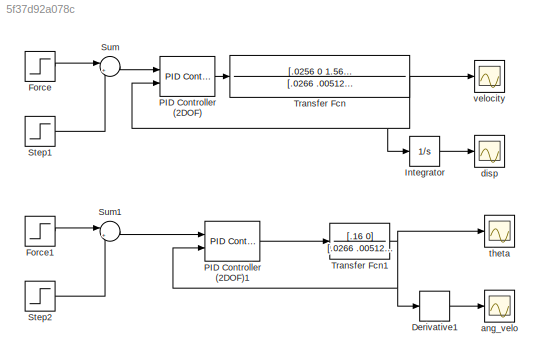
MODEL slx_5f37d92a078c
KIND model
CONFIG AbsTol = auto
CONFIG FixedStep = auto
CONFIG MaxStep = auto
CONFIG MinStep = auto
CONFIG RelTol = 1e-3
CONFIG SampleTimeConstraint = Unconstrained
CONFIG Solver = ode45
CONFIG SolverMode = Auto
CONFIG SolverName = ode45
CONFIG StartTime = 0.0
CONFIG StopTime = 70
BLOCK [Derivative] Derivative1
BLOCK [Step] Force
  After = .1
  SampleTime = 0
BLOCK [Step] Force1
  SampleTime = 0
BLOCK [Integrator] Integrator
  Ports = [1, 1]
BLOCK [Reference] PID Controller (2DOF)  REF=simulink/Continuous/PID Controller (2DOF)
  AntiWindupMode = none
  Controller = PID
  ControllerParametersSource = internal
  D = -0.0447239628206366
  DGainOutDataTypeStr = Inherit: Inherit via internal rule
  DOutDataTypeStr = Inherit: Inherit via internal rule
  DOutMax = []
  DOutMin = []
  DParamDataTypeStr = Inherit: Inherit via internal rule
  DParamMax = []
  DParamMin = []
  DProdOutDataTypeStr = Inherit: Inherit via internal rule
  DifferentiatorICPrevScaledInput = 0
  DifferentiatorOutDataTypeStr = Inherit: Inherit via internal rule
  DifferentiatorOutMax = []
  DifferentiatorOutMin = []
  ExternalReset = none
  FilterContinuousStateAttributes = ''
  FilterMethod = Forward Euler
  FilterOutDataTypeStr = Inherit: Inherit via internal rule
  FilterOutMax = []
  FilterOutMin = []
  FilterRTWStateStorageClass = Auto
  FilterStateMustResolveToSignalObject = off
  Form = Parallel
  I = 0.0260864141441956
  IGainOutDataTypeStr = Inherit: Inherit via internal rule
  IOutDataTypeStr = Inherit: Inherit via internal rule
  IOutMax = []
  IOutMin = []
  IParamDataTypeStr = Inherit: Inherit via internal rule
  IParamMax = []
  IParamMin = []
  IProdOutDataTypeStr = Inherit: Inherit via internal rule
  IgnoreLimit = off
  InitialConditionForFilter = 0
  InitialConditionForIntegrator = 0
  InitialConditionSource = internal
  IntegratorContinuousStateAttributes = ''
  IntegratorMethod = Forward Euler
  IntegratorOutDataTypeStr = Inherit: Inherit via internal rule
  IntegratorOutMax = []
  IntegratorOutMin = []
  IntegratorRTWStateStorageClass = Auto
  IntegratorStateMustResolveToSignalObject = off
  Kb = 1
  KbOutDataTypeStr = Inherit: Inherit via internal rule
  KbOutMax = []
  KbOutMin = []
  KbParamDataTypeStr = Inherit: Inherit via internal rule
  KbParamMax = []
  KbParamMin = []
  Kt = 1
  KtOutDataTypeStr = Inherit: Inherit via internal rule
  KtOutMax = []
  KtOutMin = []
  KtParamDataTypeStr = Inherit: Inherit via internal rule
  KtParamMax = []
  KtParamMin = []
  LimitOutput = off
  LinearizeAsGain = on
  LockScale = off
  LowerSaturationLimit = -inf
  N = 0.297618918978535
  NGainOutDataTypeStr = Inherit: Inherit via internal rule
  NOutDataTypeStr = Inherit: Inherit via internal rule
  NOutMax = []
  NOutMin = []
  NParamDataTypeStr = Inherit: Inherit via internal rule
  NParamMax = []
  NParamMin = []
  NProdOutDataTypeStr = Inherit: Inherit via internal rule
  P = 0.132321758434296
  PGainOutDataTypeStr = Inherit: Inherit via internal rule
  POutDataTypeStr = Inherit: Inherit via internal rule
  POutMax = []
  POutMin = []
  PParamDataTypeStr = Inherit: Inherit via internal rule
  PParamMax = []
  PParamMin = []
  PProdOutDataTypeStr = Inherit: Inherit via internal rule
  Ports = [2, 1]
  RndMeth = Floor
  SampleTime = -1
  SaturateOnIntegerOverflow = off
  SaturationOutDataTypeStr = Inherit: Same as input
  SaturationOutMax = []
  SaturationOutMin = []
  SourceBlock = simulink/Continuous/PID Controller (2DOF)
  SourceType = PID 2dof
  Sum1AccumDataTypeStr = Inherit: Inherit via internal rule
  Sum1OutDataTypeStr = Inherit: Inherit via internal rule
  Sum1OutMax = []
  Sum1OutMin = []
  Sum2AccumDataTypeStr = Inherit: Inherit via internal rule
  Sum2OutDataTypeStr = Inherit: Inherit via internal rule
  Sum2OutMax = []
  Sum2OutMin = []
  Sum3AccumDataTypeStr = Inherit: Inherit via internal rule
  Sum3OutDataTypeStr = Inherit: Inherit via internal rule
  Sum3OutMax = []
  Sum3OutMin = []
  SumAccumDataTypeStr = Inherit: Inherit via internal rule
  SumDAccumDataTypeStr = Inherit: Inherit via internal rule
  SumDOutDataTypeStr = Inherit: Inherit via internal rule
  SumDOutMax = []
  SumDOutMin = []
  SumI1AccumDataTypeStr = Inherit: Inherit via internal rule
  SumI1OutDataTypeStr = Inherit: Inherit via internal rule
  SumI1OutMax = []
  SumI1OutMin = []
  SumI2AccumDataTypeStr = Inherit: Inherit via internal rule
  SumI2OutDataTypeStr = Inherit: Inherit via internal rule
  SumI2OutMax = []
  SumI2OutMin = []
  SumI3AccumDataTypeStr = Inherit: Inherit via internal rule
  SumI3OutDataTypeStr = Inherit: Inherit via internal rule
  SumI3OutMax = []
  SumI3OutMin = []
  SumOutDataTypeStr = Inherit: Inherit via internal rule
  SumOutMax = []
  SumOutMin = []
  TimeDomain = Continuous-time
  TrackingMode = off
  UpperSaturationLimit = inf
  UseFilter = on
  ZeroCross = on
  b = 0
  bGainOutDataTypeStr = Inherit: Inherit via internal rule
  bOutDataTypeStr = Inherit: Inherit via internal rule
  bOutMax = []
  bOutMin = []
  bParamDataTypeStr = Inherit: Inherit via internal rule
  bParamMax = []
  bParamMin = []
  bProdOutDataTypeStr = Inherit: Inherit via internal rule
  c = 0
  cGainOutDataTypeStr = Inherit: Inherit via internal rule
  cOutDataTypeStr = Inherit: Inherit via internal rule
  cOutMax = []
  cOutMin = []
  cParamDataTypeStr = Inherit: Inherit via internal rule
  cParamMax = []
  cParamMin = []
  cProdOutDataTypeStr = Inherit: Inherit via internal rule
BLOCK [Reference] PID Controller (2DOF)1  REF=simulink/Continuous/PID Controller (2DOF)
  AntiWindupMode = none
  Controller = PID
  ControllerParametersSource = internal
  D = 2.12079190467696
  DGainOutDataTypeStr = Inherit: Inherit via internal rule
  DOutDataTypeStr = Inherit: Inherit via internal rule
  DOutMax = []
  DOutMin = []
  DParamDataTypeStr = Inherit: Inherit via internal rule
  DParamMax = []
  DParamMin = []
  DProdOutDataTypeStr = Inherit: Inherit via internal rule
  DifferentiatorICPrevScaledInput = 0
  DifferentiatorOutDataTypeStr = Inherit: Inherit via internal rule
  DifferentiatorOutMax = []
  DifferentiatorOutMin = []
  ExternalReset = none
  FilterContinuousStateAttributes = ''
  FilterMethod = Forward Euler
  FilterOutDataTypeStr = Inherit: Inherit via internal rule
  FilterOutMax = []
  FilterOutMin = []
  FilterRTWStateStorageClass = Auto
  FilterStateMustResolveToSignalObject = off
  Form = Parallel
  I = 46.1614731554735
  IGainOutDataTypeStr = Inherit: Inherit via internal rule
  IOutDataTypeStr = Inherit: Inherit via internal rule
  IOutMax = []
  IOutMin = []
  IParamDataTypeStr = Inherit: Inherit via internal rule
  IParamMax = []
  IParamMin = []
  IProdOutDataTypeStr = Inherit: Inherit via internal rule
  IgnoreLimit = off
  InitialConditionForFilter = 0
  InitialConditionForIntegrator = 0
  InitialConditionSource = internal
  IntegratorContinuousStateAttributes = ''
  IntegratorMethod = Forward Euler
  IntegratorOutDataTypeStr = Inherit: Inherit via internal rule
  IntegratorOutMax = []
  IntegratorOutMin = []
  IntegratorRTWStateStorageClass = Auto
  IntegratorStateMustResolveToSignalObject = off
  Kb = 1
  KbOutDataTypeStr = Inherit: Inherit via internal rule
  KbOutMax = []
  KbOutMin = []
  KbParamDataTypeStr = Inherit: Inherit via internal rule
  KbParamMax = []
  KbParamMin = []
  Kt = 1
  KtOutDataTypeStr = Inherit: Inherit via internal rule
  KtOutMax = []
  KtOutMin = []
  KtParamDataTypeStr = Inherit: Inherit via internal rule
  KtParamMax = []
  KtParamMin = []
  LimitOutput = off
  LinearizeAsGain = on
  LockScale = off
  LowerSaturationLimit = -inf
  N = 1970.35197192585
  NGainOutDataTypeStr = Inherit: Inherit via internal rule
  NOutDataTypeStr = Inherit: Inherit via internal rule
  NOutMax = []
  NOutMin = []
  NParamDataTypeStr = Inherit: Inherit via internal rule
  NParamMax = []
  NParamMin = []
  NProdOutDataTypeStr = Inherit: Inherit via internal rule
  P = 19.8146266749193
  PGainOutDataTypeStr = Inherit: Inherit via internal rule
  POutDataTypeStr = Inherit: Inherit via internal rule
  POutMax = []
  POutMin = []
  PParamDataTypeStr = Inherit: Inherit via internal rule
  PParamMax = []
  PParamMin = []
  PProdOutDataTypeStr = Inherit: Inherit via internal rule
  Ports = [2, 1]
  RndMeth = Floor
  SampleTime = -1
  SaturateOnIntegerOverflow = off
  SaturationOutDataTypeStr = Inherit: Same as input
  SaturationOutMax = []
  SaturationOutMin = []
  SourceBlock = simulink/Continuous/PID Controller (2DOF)
  SourceType = PID 2dof
  Sum1AccumDataTypeStr = Inherit: Inherit via internal rule
  Sum1OutDataTypeStr = Inherit: Inherit via internal rule
  Sum1OutMax = []
  Sum1OutMin = []
  Sum2AccumDataTypeStr = Inherit: Inherit via internal rule
  Sum2OutDataTypeStr = Inherit: Inherit via internal rule
  Sum2OutMax = []
  Sum2OutMin = []
  Sum3AccumDataTypeStr = Inherit: Inherit via internal rule
  Sum3OutDataTypeStr = Inherit: Inherit via internal rule
  Sum3OutMax = []
  Sum3OutMin = []
  SumAccumDataTypeStr = Inherit: Inherit via internal rule
  SumDAccumDataTypeStr = Inherit: Inherit via internal rule
  SumDOutDataTypeStr = Inherit: Inherit via internal rule
  SumDOutMax = []
  SumDOutMin = []
  SumI1AccumDataTypeStr = Inherit: Inherit via internal rule
  SumI1OutDataTypeStr = Inherit: Inherit via internal rule
  SumI1OutMax = []
  SumI1OutMin = []
  SumI2AccumDataTypeStr = Inherit: Inherit via internal rule
  SumI2OutDataTypeStr = Inherit: Inherit via internal rule
  SumI2OutMax = []
  SumI2OutMin = []
  SumI3AccumDataTypeStr = Inherit: Inherit via internal rule
  SumI3OutDataTypeStr = Inherit: Inherit via internal rule
  SumI3OutMax = []
  SumI3OutMin = []
  SumOutDataTypeStr = Inherit: Inherit via internal rule
  SumOutMax = []
  SumOutMin = []
  TimeDomain = Continuous-time
  TrackingMode = off
  UpperSaturationLimit = inf
  UseFilter = on
  ZeroCross = on
  b = 1.26719280737048
  bGainOutDataTypeStr = Inherit: Inherit via internal rule
  bOutDataTypeStr = Inherit: Inherit via internal rule
  bOutMax = []
  bOutMin = []
  bParamDataTypeStr = Inherit: Inherit via internal rule
  bParamMax = []
  bParamMin = []
  bProdOutDataTypeStr = Inherit: Inherit via internal rule
  c = -0.00600878581315556
  cGainOutDataTypeStr = Inherit: Inherit via internal rule
  cOutDataTypeStr = Inherit: Inherit via internal rule
  cOutMax = []
  cOutMin = []
  cParamDataTypeStr = Inherit: Inherit via internal rule
  cParamMax = []
  cParamMin = []
  cProdOutDataTypeStr = Inherit: Inherit via internal rule
BLOCK [Step] Step1
  After = .1
  SampleTime = 0
  Time = 2
BLOCK [Step] Step2
  SampleTime = 0
  Time = 2
BLOCK [Sum] Sum
  IconShape = round
  InputSameDT = off
  Inputs = |+-
  OutDataTypeStr = Inherit: Inherit via internal rule
  Ports = [2, 1]
  SaturateOnIntegerOverflow = off
BLOCK [Sum] Sum1
  IconShape = round
  InputSameDT = off
  Inputs = |+-
  OutDataTypeStr = Inherit: Inherit via internal rule
  Ports = [2, 1]
  SaturateOnIntegerOverflow = off
BLOCK [TransferFcn] Transfer Fcn
  Denominator = [.0266 .00512 1.601 .1569]
  Numerator = [.0256 0 1.569]
BLOCK [TransferFcn] Transfer Fcn1
  Denominator = [.0266 .00512 1.601 .1569]
  Numerator = [.16 0]
BLOCK [Scope] ang_velo
  Floating = off
  NumInputPorts = 1
  Ports = [1]
  SaveName = ScopeData2
BLOCK [Scope] disp
  Floating = off
  NumInputPorts = 1
  Ports = [1]
  SaveName = ScopeData1
BLOCK [Scope] theta
  Floating = off
  NumInputPorts = 1
  Ports = [1]
  SaveName = ScopeData3
BLOCK [Scope] velocity
  Floating = off
  NumInputPorts = 1
  Ports = [1]
LINE Derivative1:1 -> ang_velo:1
LINE Force1:1 -> Sum1:1
LINE Force:1 -> Sum:1
LINE Integrator:1 -> disp:1
LINE PID Controller (2DOF)1:1 -> Transfer Fcn1:1
LINE PID Controller (2DOF):1 -> Transfer Fcn:1
LINE Step1:1 -> Sum:2
LINE Step2:1 -> Sum1:2
LINE Sum1:1 -> PID Controller (2DOF)1:1
LINE Sum:1 -> PID Controller (2DOF):1
NET Transfer Fcn1:1 -> Derivative1:1, PID Controller (2DOF)1:2, theta:1
NET Transfer Fcn:1 -> Integrator:1, PID Controller (2DOF):2, velocity:1
note: NET lines group one-source signal fan-out (src -> all destinations, sorted); 1:1 wires keep LINE
